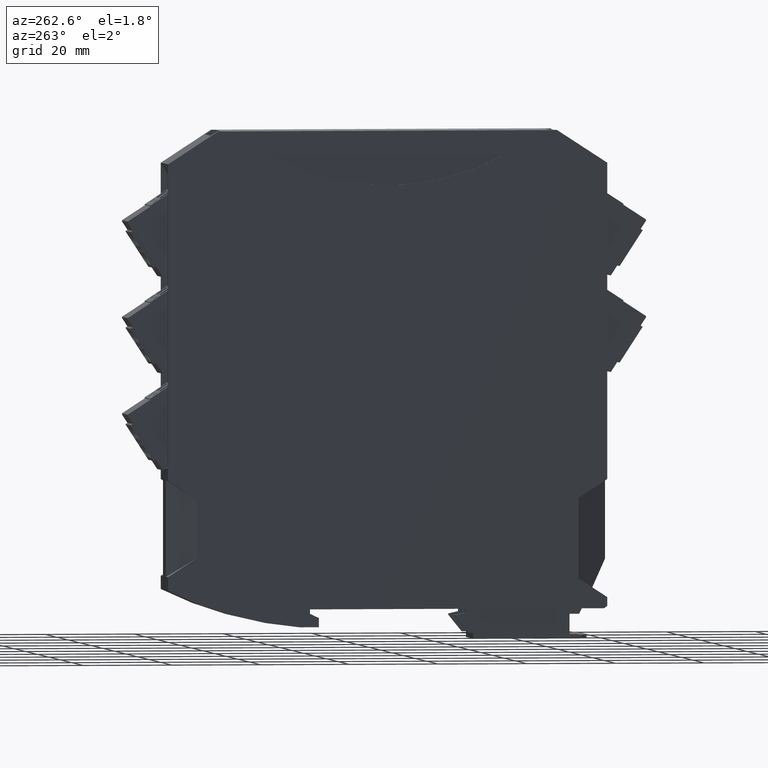
[diagram: clean part render]
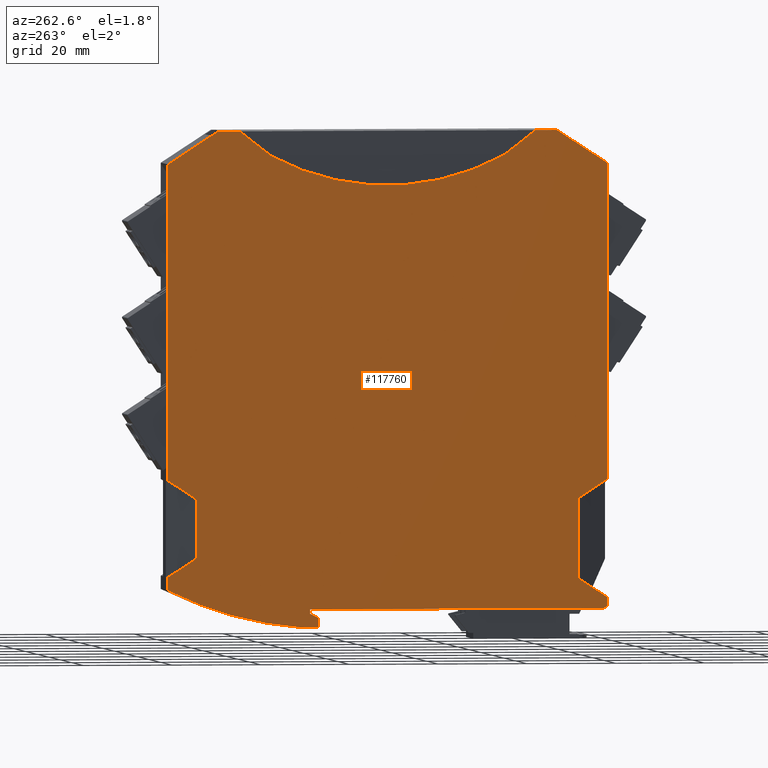
[diagram: same view with one face highlighted and labeled with its STEP entity id]
A machine part, auxiliary view. The second image highlights one B-rep face of the part: STEP entity #117760.
In plain terms, the highlighted planar face has unit normal (-1, -0, 0).
Its self-contained STEP definition (entity closure, byte-faithful):
#2270=CARTESIAN_POINT('',(2.8697044740511E-11,0.73074269924809,
6.70000000004453));
#2280=VERTEX_POINT('',#2270);
#2330=CARTESIAN_POINT('',(-1.85931270380024E-11,49.500000000262,
-24.9711260059676));
#2340=DIRECTION('',(8.13239609405544E-13,-0.838670567944297,
0.544639035016763));
#2350=VECTOR('',#2340,1.);
#2360=LINE('',#2330,#2350);
#2370=CARTESIAN_POINT('',(2.94058111194317E-11,-9.52056211644958E-11,
7.17454985768686));
#2380=VERTEX_POINT('',#2370);
#2390=EDGE_CURVE('',#2280,#2380,#2360,.T.);
#9420=CARTESIAN_POINT('',(-6.65920651954366E-11,99.0000000001181,
106.36169419687));
#9430=VERTEX_POINT('',#9420);
#9480=CARTESIAN_POINT('',(-6.65920651954366E-11,99.0000000005153,
-45.6999999999939));
#9490=DIRECTION('',(-2.22950086395226E-24,2.29927362408618E-12,-1.));
#9500=VECTOR('',#9490,1.);
#9510=LINE('',#9480,#9500);
#9520=CARTESIAN_POINT('',(-6.65920651954366E-11,99.0000000003284,
35.5999999998135));
#9530=VERTEX_POINT('',#9520);
#9540=EDGE_CURVE('',#9430,#9530,#9510,.T.);
#9760=CARTESIAN_POINT('',(-6.65920651954366E-11,99.0000000003781,
14.0000000001642));
#9770=VERTEX_POINT('',#9760);
#9800=CARTESIAN_POINT('',(-6.65920651954366E-11,99.0000000005153,
-45.6999999999939));
#9810=DIRECTION('',(-2.22950086395226E-24,2.29927362408618E-12,-1.));
#9820=VECTOR('',#9810,1.);
#9830=LINE('',#9800,#9820);
#9840=CARTESIAN_POINT('',(-6.65920651954366E-11,99.000000000385,
11.0077156022));
#9850=VERTEX_POINT('',#9840);
#9860=EDGE_CURVE('',#9770,#9850,#9830,.T.);
#13310=CARTESIAN_POINT('',(-3.5562663924793E-11,67.0000000002791,
5.70000000001478));
#13320=VERTEX_POINT('',#13310);
#13490=CARTESIAN_POINT('',(-3.36228822561679E-11,65.0000000002784,
4.76738468370457));
#13500=VERTEX_POINT('',#13490);
#13530=CARTESIAN_POINT('',(-1.85931270380024E-11,49.5000000003096,
-2.46038401768254));
#13540=DIRECTION('',(-8.78823825525786E-13,0.906307787036668,
0.42261826174066));
#13550=VECTOR('',#13540,1.);
#13560=LINE('',#13530,#13550);
#13570=EDGE_CURVE('',#13500,#13320,#13560,.T.);
#13870=CARTESIAN_POINT('',(-3.36228822561679E-11,65.0000000002784,
2.70000000001691));
#13880=VERTEX_POINT('',#13870);
#13910=CARTESIAN_POINT('',(-3.36228822561679E-11,65.0000000002784,
-45.6999999999939));
#13920=DIRECTION('',(2.21481943604532E-30,3.85185988877447E-34,1.));
#13930=VECTOR('',#13920,1.);
#13940=LINE('',#13910,#13930);
#13950=EDGE_CURVE('',#13880,#13500,#13940,.T.);
#14620=CARTESIAN_POINT('',(-6.02895511292445E-11,92.5000000014452,
31.3788506445357));
#14630=VERTEX_POINT('',#14620);
#14670=CARTESIAN_POINT('',(-1.85931270380024E-11,49.5000000003096,
3.45432413652382));
#14680=DIRECTION('',(8.13237121670311E-13,-0.838670567945419,
-0.544639035015035));
#14690=VECTOR('',#14680,1.);
#14700=LINE('',#14670,#14690);
#14710=EDGE_CURVE('',#9530,#14630,#14700,.T.);
#14920=CARTESIAN_POINT('',(2.94058111194317E-11,7.21911419532262E-11,
106.361694196737));
#14930=VERTEX_POINT('',#14920);
#15260=CARTESIAN_POINT('',(2.94058111194317E-11,-1.35855771077331E-11,
35.6000000000131));
#15270=VERTEX_POINT('',#15260);
#15300=CARTESIAN_POINT('',(2.94058111194317E-11,-1.66849645211187E-10,
-45.6999999999939));
#15310=DIRECTION('',(1.82764232603561E-24,-1.88483935512212E-12,-1.));
#15320=VECTOR('',#15310,1.);
#15330=LINE('',#15300,#15320);
#15340=EDGE_CURVE('',#14930,#15270,#15330,.T.);
#19990=CARTESIAN_POINT('',(-3.78115316834737E-11,69.3196123301776,
2.70000000001809));
#20000=VERTEX_POINT('',#19990);
#20130=CARTESIAN_POINT('',(-3.16848769443823E-11,63.0000000003012,
82.4499999999972));
#20140=DIRECTION('',(1.,9.69667423635606E-13,-2.21443425005644E-30));
#20150=DIRECTION('',(9.69667423635606E-13,-1.,-1.29579546715093E-34));
#20160=AXIS2_PLACEMENT_3D('',#20130,#20140,#20150);
#20170=CIRCLE('',#20160,79.9999999999787);
#20180=EDGE_CURVE('',#20000,#9850,#20170,.T.);
#20430=CARTESIAN_POINT('',(-1.85931270380024E-11,49.5000000003096,
2.70000000001809));
#20440=DIRECTION('',(9.69667423635606E-13,-1.,-2.21456382960316E-30));
#20450=VECTOR('',#20440,1.);
#20460=LINE('',#20430,#20450);
#20470=EDGE_CURVE('',#20000,#13880,#20460,.T.);
#22590=CARTESIAN_POINT('',(2.94058111194317E-11,-2.10484074614214E-10,
-45.699999999981));
#22600=DIRECTION('',(-1.77957860880231E-24,1.83510136361891E-12,1.));
#22610=VECTOR('',#22600,1.);
#22620=LINE('',#22590,#22610);
#22630=CARTESIAN_POINT('',(2.94058111194317E-11,-7.50191020415514E-11,
9.1999999999916));
#22640=VERTEX_POINT('',#22630);
#22650=EDGE_CURVE('',#2380,#22640,#22620,.T.);
#22880=CARTESIAN_POINT('',(-6.02877747724051E-11,92.5000000013451,
18.2211493553219));
#22890=VERTEX_POINT('',#22880);
#22920=CARTESIAN_POINT('',(-1.85931270380024E-11,49.5000000003096,
46.1456758635003));
#22930=DIRECTION('',(-8.13211853829928E-13,0.838670567945309,
-0.544639035015204));
#22940=VECTOR('',#22930,1.);
#22950=LINE('',#22920,#22940);
#22960=EDGE_CURVE('',#22890,#9770,#22950,.T.);
#24410=CARTESIAN_POINT('',(-3.5562663924793E-11,67.0000000002791,
6.69999999991727));
#24420=VERTEX_POINT('',#24410);
#24470=CARTESIAN_POINT('',(-3.5562663924793E-11,67.0000000002791,
-45.6999999999939));
#24480=DIRECTION('',(3.90078621308169E-28,-4.00000000000003E-16,1.));
#24490=VECTOR('',#24480,1.);
#24500=LINE('',#24470,#24490);
#24510=EDGE_CURVE('',#13320,#24420,#24500,.T.);
#24880=CARTESIAN_POINT('',(-7.17125914206918E-10,92.5000000003076,
-45.6999999999939));
#24890=DIRECTION('',(-2.28383853640871E-18,-2.28383853641506E-18,-1.));
#24900=VECTOR('',#24890,1.);
#24910=LINE('',#24880,#24900);
#24920=EDGE_CURVE('',#14630,#22890,#24910,.T.);
#25410=CARTESIAN_POINT('',(-1.85931270380024E-11,49.5000000003096,
6.69999999995088));
#25420=DIRECTION('',(-9.69667423635606E-13,1.,-1.92039736359231E-12));
#25430=VECTOR('',#25420,1.);
#25440=LINE('',#25410,#25430);
#25450=EDGE_CURVE('',#2280,#24420,#25440,.T.);
#25860=CARTESIAN_POINT('',(2.31015206964003E-11,6.49999999902943,
13.4211493553931));
#25870=VERTEX_POINT('',#25860);
#25900=CARTESIAN_POINT('',(-7.17125914206918E-10,6.50000000031154,
-45.6999999999939));
#25910=DIRECTION('',(-2.28383853641699E-18,-2.28383853641506E-18,-1.));
#25920=VECTOR('',#25910,1.);
#25930=LINE('',#25900,#25920);
#25940=CARTESIAN_POINT('',(-1.54766865989586E-10,6.49999999933751,
31.3788506446465));
#25950=VERTEX_POINT('',#25940);
#25960=EDGE_CURVE('',#25950,#25870,#25930,.T.);
#26370=CARTESIAN_POINT('',(-1.85931270380024E-11,49.5000000003096,
3.45432413649472));
#26380=DIRECTION('',(8.13239609405544E-13,-0.838670567945178,
0.544639035015406));
#26390=VECTOR('',#26380,1.);
#26400=LINE('',#26370,#26390);
#26410=EDGE_CURVE('',#25950,#15270,#26400,.T.);
#26560=CARTESIAN_POINT('',(-1.85931270380024E-11,49.5000000003096,
41.3456758635122));
#26570=DIRECTION('',(-8.13237121670311E-13,0.83867056794547,
0.544639035014957));
#26580=VECTOR('',#26570,1.);
#26590=LINE('',#26560,#26580);
#26600=EDGE_CURVE('',#22640,#25870,#26590,.T.);
#26920=CARTESIAN_POINT('',(-5.09086106603718E-11,82.825631895546,
113.699999999896));
#26930=VERTEX_POINT('',#26920);
#26960=CARTESIAN_POINT('',(-1.85931270380024E-11,49.500000000262,
113.699999999957));
#26970=DIRECTION('',(-9.69667423635606E-13,1.,-1.83510136361891E-12));
#26980=VECTOR('',#26970,1.);
#26990=LINE('',#26960,#26980);
#27000=CARTESIAN_POINT('',(-5.56337198531764E-11,87.7000000003435,
113.699999999887));
#27010=VERTEX_POINT('',#27000);
#27020=EDGE_CURVE('',#26930,#27010,#26990,.T.);
#67030=CARTESIAN_POINT('',(6.95088431257318E-12,23.1552602196588,
108.25000000001));
#67040=VERTEX_POINT('',#67030);
#67190=CARTESIAN_POINT('',(-4.41442438159356E-11,75.8499500002225,
108.250000000007));
#67200=VERTEX_POINT('',#67190);
#67870=CARTESIAN_POINT('',(-1.85877979674842E-11,23.2192573012381,
108.199999999997));
#67880=VERTEX_POINT('',#67870);
#67930=CARTESIAN_POINT('',(-1.85931270380024E-11,49.500000000262,
87.6672334752828));
#67940=DIRECTION('',(7.64084647194051E-13,-0.788010753605531,
0.615661475327183));
#67950=VECTOR('',#67940,1.);
#67960=LINE('',#67930,#67950);
#67970=EDGE_CURVE('',#67880,#67040,#67960,.T.);
#68180=CARTESIAN_POINT('',(-1.86020088221994E-11,75.7980109545259,
108.20942077015));
#68190=VERTEX_POINT('',#68180);
#68240=CARTESIAN_POINT('',(-1.85949033948418E-11,49.5000000002444,
156.39309229952));
#68250=DIRECTION('',(-1.,-2.7762616473802E-16,2.28383853639904E-18));
#68260=DIRECTION('',(2.7762616473802E-16,-1.,-4.97357076646705E-14));
#68270=AXIS2_PLACEMENT_3D('',#68240,#68250,#68260);
#68280=CIRCLE('',#68270,54.8930922995028);
#68290=EDGE_CURVE('',#68190,#67880,#68280,.T.);
#68490=CARTESIAN_POINT('',(-1.85931270380024E-11,49.500000000262,
87.6631628059093));
#68500=DIRECTION('',(7.64109590626861E-13,-0.788010753607329,
-0.615661475324882));
#68510=VECTOR('',#68500,1.);
#68520=LINE('',#68490,#68510);
#68530=EDGE_CURVE('',#67200,#68190,#68520,.T.);
#68740=CARTESIAN_POINT('',(1.37170275138487E-11,16.1795783242241,
113.700000000018));
#68750=VERTEX_POINT('',#68740);
#68780=CARTESIAN_POINT('',(-1.85931270380024E-11,49.500000000262,
87.6672334752828));
#68790=DIRECTION('',(-7.64112402769667E-13,0.788010753605531,
-0.615661475327183));
#68800=VECTOR('',#68790,1.);
#68810=LINE('',#68780,#68800);
#68820=EDGE_CURVE('',#68750,#67040,#68810,.T.);
#68850=CARTESIAN_POINT('',(-1.85931270380024E-11,49.500000000262,
87.6631628059093));
#68860=DIRECTION('',(-7.64109590626861E-13,0.788010753607329,
0.615661475324882));
#68870=VECTOR('',#68860,1.);
#68880=LINE('',#68850,#68870);
#68890=EDGE_CURVE('',#67200,#26930,#68880,.T.);
#72270=CARTESIAN_POINT('',(1.84474657771716E-11,11.3000000003769,
113.700000000027));
#72280=VERTEX_POINT('',#72270);
#72310=EDGE_CURVE('',#72280,#68750,#26990,.T.);
#112330=CARTESIAN_POINT('',(-1.85931270380024E-11,49.500000000262,
138.507370060189));
#112340=DIRECTION('',(-8.13239609405544E-13,0.838670567944371,
-0.544639035016649));
#112350=VECTOR('',#112340,1.);
#112360=LINE('',#112330,#112350);
#112370=EDGE_CURVE('',#27010,#9430,#112360,.T.);
#115930=CARTESIAN_POINT('',(-1.85931270380024E-11,49.500000000262,
138.507370059961));
#115940=DIRECTION('',(-8.13237121670311E-13,0.838670567946785,
0.544639035012931));
#115950=VECTOR('',#115940,1.);
#115960=LINE('',#115930,#115950);
#115970=EDGE_CURVE('',#14930,#72280,#115960,.T.);
#117430=CARTESIAN_POINT('',(-3.48290285501207E-11,66.2429808549896,
62.5853414744637));
#117440=DIRECTION('',(-1.,-9.69667423635606E-13,2.21456382961011E-30));
#117450=DIRECTION('',(9.69667423635606E-13,-1.,2.28383853642001E-18));
#117460=AXIS2_PLACEMENT_3D('',#117430,#117440,#117450);
#117470=PLANE('',#117460);
#117480=ORIENTED_EDGE('',*,*,#112370,.T.);
#117490=ORIENTED_EDGE('',*,*,#27020,.T.);
#117500=ORIENTED_EDGE('',*,*,#68890,.T.);
#117510=ORIENTED_EDGE('',*,*,#68530,.F.);
#117520=ORIENTED_EDGE('',*,*,#68290,.F.);
#117530=ORIENTED_EDGE('',*,*,#67970,.F.);
#117540=ORIENTED_EDGE('',*,*,#68820,.T.);
#117550=ORIENTED_EDGE('',*,*,#72310,.T.);
#117560=ORIENTED_EDGE('',*,*,#115970,.T.);
#117570=ORIENTED_EDGE('',*,*,#15340,.F.);
#117580=ORIENTED_EDGE('',*,*,#26410,.T.);
#117590=ORIENTED_EDGE('',*,*,#25960,.F.);
#117600=ORIENTED_EDGE('',*,*,#26600,.T.);
#117610=ORIENTED_EDGE('',*,*,#22650,.T.);
#117620=ORIENTED_EDGE('',*,*,#2390,.T.);
#117630=ORIENTED_EDGE('',*,*,#25450,.F.);
#117640=ORIENTED_EDGE('',*,*,#24510,.T.);
#117650=ORIENTED_EDGE('',*,*,#13570,.T.);
#117660=ORIENTED_EDGE('',*,*,#13950,.T.);
#117670=ORIENTED_EDGE('',*,*,#20470,.T.);
#117680=ORIENTED_EDGE('',*,*,#20180,.F.);
#117690=ORIENTED_EDGE('',*,*,#9860,.T.);
#117700=ORIENTED_EDGE('',*,*,#22960,.T.);
#117710=ORIENTED_EDGE('',*,*,#24920,.T.);
#117720=ORIENTED_EDGE('',*,*,#14710,.T.);
#117730=ORIENTED_EDGE('',*,*,#9540,.T.);
#117740=EDGE_LOOP('',(#117730,#117720,#117710,#117700,#117690,#117680,
#117670,#117660,#117650,#117640,#117630,#117620,#117610,#117600,#117590,
#117580,#117570,#117560,#117550,#117540,#117530,#117520,#117510,#117500,
#117490,#117480));
#117750=FACE_OUTER_BOUND('',#117740,.T.);
#117760=ADVANCED_FACE('',(#117750),#117470,.T.);